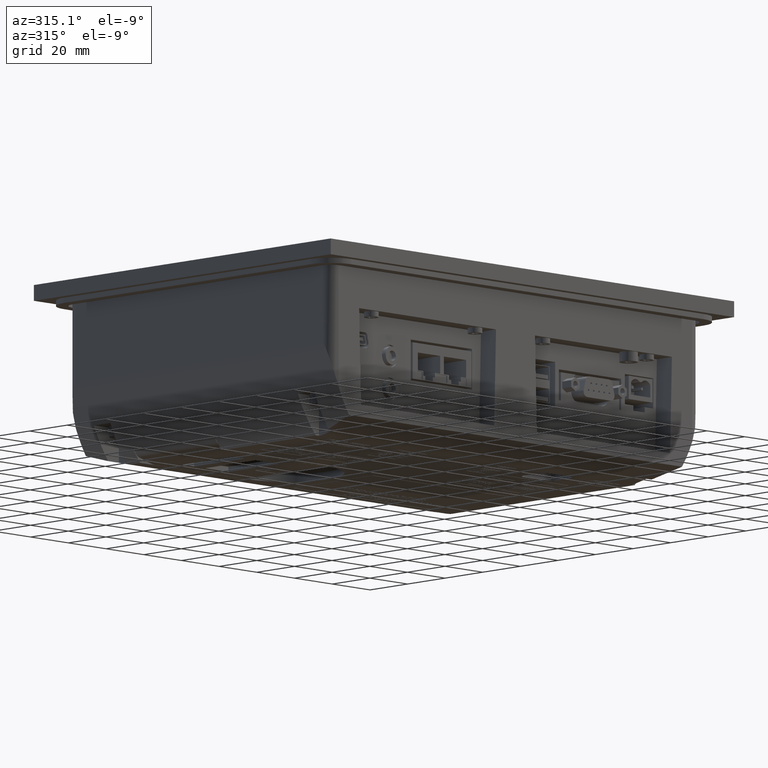
[diagram: clean part render]
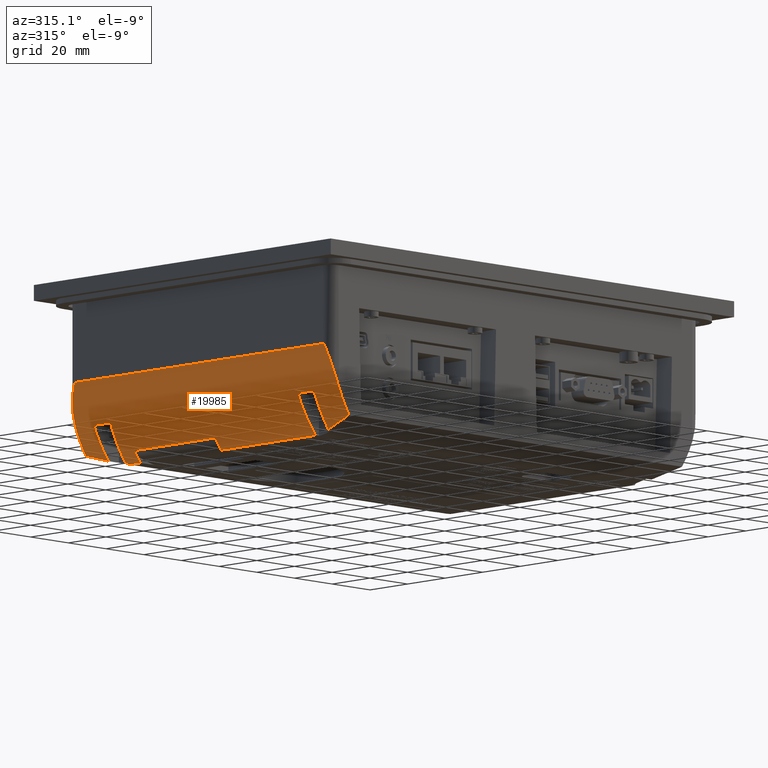
[diagram: same view with one face highlighted and labeled with its STEP entity id]
A machine part, auxiliary view. The second image highlights one B-rep face of the part: STEP entity #19985.
In plain terms, the highlighted cylindrical surface (partial cylindrical patch) has radius 60 mm, axis along (0, 1, 0).
Its self-contained STEP definition (entity closure, byte-faithful):
#91=ELLIPSE('',#50660,60.0571606108242,59.9999995013461);
#92=ELLIPSE('',#50661,60.0571606108119,59.9999995013461);
#93=ELLIPSE('',#50664,60.0571606107781,59.9999995013461);
#94=ELLIPSE('',#50665,60.0571606107981,59.9999995013461);
#432=B_SPLINE_CURVE_WITH_KNOTS('',3,(#66318,#66319,#66320,#66321),.UNSPECIFIED.,
 .F.,.F.,(4,4),(0.,1.),.UNSPECIFIED.);
#437=B_SPLINE_CURVE_WITH_KNOTS('',3,(#66396,#66397,#66398,#66399,#66400,
#66401,#66402,#66403,#66404,#66405,#66406,#66407,#66408,#66409),.UNSPECIFIED.,
 .F.,.F.,(4,2,2,2,2,2,4),(0.,0.0312499999999994,0.0624999999999988,0.124999999999999,
0.249999999999999,0.499999999999999,1.),.UNSPECIFIED.);
#438=B_SPLINE_CURVE_WITH_KNOTS('',3,(#66413,#66414,#66415,#66416,#66417,
#66418,#66419,#66420,#66421,#66422,#66423,#66424,#66425,#66426),.UNSPECIFIED.,
 .F.,.F.,(4,2,2,2,2,2,4),(0.,0.5,0.75,0.875000000000001,0.937500000000001,
0.96875,1.),.UNSPECIFIED.);
#439=B_SPLINE_CURVE_WITH_KNOTS('',3,(#66430,#66431,#66432,#66433),.UNSPECIFIED.,
 .F.,.F.,(4,4),(0.,1.),.UNSPECIFIED.);
#440=B_SPLINE_CURVE_WITH_KNOTS('',3,(#66441,#66442,#66443,#66444),.UNSPECIFIED.,
 .F.,.F.,(4,4),(0.,1.),.UNSPECIFIED.);
#1830=LINE('',#66284,#7215);
#1838=LINE('',#66300,#7223);
#1845=LINE('',#66385,#7230);
#1846=LINE('',#66391,#7231);
#1847=LINE('',#66411,#7232);
#1848=LINE('',#66437,#7233);
#7215=VECTOR('',#54502,1.);
#7223=VECTOR('',#54510,1.);
#7230=VECTOR('',#54545,1.);
#7231=VECTOR('',#54550,1.);
#7232=VECTOR('',#54555,1.);
#7233=VECTOR('',#54560,1.);
#17469=FACE_OUTER_BOUND('',#23519,.T.);
#19985=ADVANCED_FACE('',(#17469),#22531,.T.);
#22531=CYLINDRICAL_SURFACE('',#50667,59.9999995013461);
#23519=EDGE_LOOP('',(#27588,#27589,#27590,#27591,#27592,#27593,#27594,#27595,
#27596,#27597,#27598,#27599,#27600,#27601,#27602,#27603,#27604,#27605,#27606));
#27588=ORIENTED_EDGE('',*,*,#44105,.T.);
#27589=ORIENTED_EDGE('',*,*,#44106,.F.);
#27590=ORIENTED_EDGE('',*,*,#44081,.F.);
#27591=ORIENTED_EDGE('',*,*,#44107,.T.);
#27592=ORIENTED_EDGE('',*,*,#44108,.T.);
#27593=ORIENTED_EDGE('',*,*,#44109,.T.);
#27594=ORIENTED_EDGE('',*,*,#44088,.F.);
#27595=ORIENTED_EDGE('',*,*,#44110,.F.);
#27596=ORIENTED_EDGE('',*,*,#44111,.F.);
#27597=ORIENTED_EDGE('',*,*,#44112,.T.);
#27598=ORIENTED_EDGE('',*,*,#44113,.F.);
#27599=ORIENTED_EDGE('',*,*,#44114,.F.);
#27600=ORIENTED_EDGE('',*,*,#44115,.F.);
#27601=ORIENTED_EDGE('',*,*,#44116,.F.);
#27602=ORIENTED_EDGE('',*,*,#44117,.T.);
#27603=ORIENTED_EDGE('',*,*,#44118,.F.);
#27604=ORIENTED_EDGE('',*,*,#44119,.F.);
#27605=ORIENTED_EDGE('',*,*,#44073,.F.);
#27606=ORIENTED_EDGE('',*,*,#44120,.F.);
#39553=VERTEX_POINT('',#66283);
#39554=VERTEX_POINT('',#66285);
#39561=VERTEX_POINT('',#66299);
#39562=VERTEX_POINT('',#66301);
#39568=VERTEX_POINT('',#66317);
#39569=VERTEX_POINT('',#66322);
#39582=VERTEX_POINT('',#66386);
#39583=VERTEX_POINT('',#66387);
#39584=VERTEX_POINT('',#66390);
#39585=VERTEX_POINT('',#66392);
#39586=VERTEX_POINT('',#66395);
#39587=VERTEX_POINT('',#66410);
#39588=VERTEX_POINT('',#66412);
#39589=VERTEX_POINT('',#66427);
#39590=VERTEX_POINT('',#66429);
#39591=VERTEX_POINT('',#66434);
#39592=VERTEX_POINT('',#66436);
#39593=VERTEX_POINT('',#66438);
#39594=VERTEX_POINT('',#66440);
#44073=EDGE_CURVE('',#39553,#39554,#1830,.T.);
#44081=EDGE_CURVE('',#39561,#39562,#1838,.T.);
#44088=EDGE_CURVE('',#39568,#39569,#432,.T.);
#44105=EDGE_CURVE('',#39582,#39583,#1845,.T.);
#44106=EDGE_CURVE('',#39562,#39583,#49981,.T.);
#44107=EDGE_CURVE('',#39561,#39584,#91,.T.);
#44108=EDGE_CURVE('',#39584,#39585,#1846,.T.);
#44109=EDGE_CURVE('',#39585,#39569,#92,.T.);
#44110=EDGE_CURVE('',#39586,#39568,#49982,.T.);
#44111=EDGE_CURVE('',#39587,#39586,#437,.T.);
#44112=EDGE_CURVE('',#39587,#39588,#1847,.T.);
#44113=EDGE_CURVE('',#39589,#39588,#438,.T.);
#44114=EDGE_CURVE('',#39590,#39589,#49983,.T.);
#44115=EDGE_CURVE('',#39591,#39590,#439,.T.);
#44116=EDGE_CURVE('',#39592,#39591,#93,.T.);
#44117=EDGE_CURVE('',#39592,#39593,#1848,.T.);
#44118=EDGE_CURVE('',#39594,#39593,#94,.T.);
#44119=EDGE_CURVE('',#39554,#39594,#440,.T.);
#44120=EDGE_CURVE('',#39582,#39553,#49984,.T.);
#49981=CIRCLE('',#50659,59.9999995013461);
#49982=CIRCLE('',#50662,59.9999995013461);
#49983=CIRCLE('',#50663,59.9999995013461);
#49984=CIRCLE('',#50666,59.9999995013461);
#50659=AXIS2_PLACEMENT_3D('',#66388,#54546,#54547);
#50660=AXIS2_PLACEMENT_3D('',#66389,#54548,#54549);
#50661=AXIS2_PLACEMENT_3D('',#66393,#54551,#54552);
#50662=AXIS2_PLACEMENT_3D('',#66394,#54553,#54554);
#50663=AXIS2_PLACEMENT_3D('',#66428,#54556,#54557);
#50664=AXIS2_PLACEMENT_3D('',#66435,#54558,#54559);
#50665=AXIS2_PLACEMENT_3D('',#66439,#54561,#54562);
#50666=AXIS2_PLACEMENT_3D('',#66445,#54563,#54564);
#50667=AXIS2_PLACEMENT_3D('',#66446,#54565,#54566);
#54502=DIRECTION('',(0.,1.,0.));
#54510=DIRECTION('',(0.,1.,0.));
#54545=DIRECTION('',(0.,-1.,0.));
#54546=DIRECTION('',(0.,1.,0.));
#54547=DIRECTION('',(0.,0.,-1.));
#54548=DIRECTION('',(0.04361938742399,0.999048221579297,0.));
#54549=DIRECTION('',(-0.999048221579297,0.04361938742399,0.));
#54550=DIRECTION('',(0.,-1.,0.));
#54551=DIRECTION('',(0.0436193874192898,-0.999048221579502,0.));
#54552=DIRECTION('',(0.999048221579502,0.0436193874192898,0.));
#54553=DIRECTION('',(0.,-1.,0.));
#54554=DIRECTION('',(0.,0.,-1.));
#54555=DIRECTION('',(0.,1.,0.));
#54556=DIRECTION('',(0.,1.,0.));
#54557=DIRECTION('',(-1.,0.,-1.73472349039392E-016));
#54558=DIRECTION('',(-0.0436193874064379,-0.999048221580063,0.));
#54559=DIRECTION('',(-0.999048221580063,0.0436193874064379,0.));
#54560=DIRECTION('',(0.,-1.,0.));
#54561=DIRECTION('',(-0.0436193874140512,0.999048221579731,0.));
#54562=DIRECTION('',(0.999048221579731,0.0436193874140512,0.));
#54563=DIRECTION('',(0.,-1.,0.));
#54564=DIRECTION('',(0.,0.,1.));
#54565=DIRECTION('',(0.,1.,0.));
#54566=DIRECTION('',(0.,0.,1.));
#66283=CARTESIAN_POINT('',(-84.6864665830923,44.837825168691,-69.));
#66284=CARTESIAN_POINT('',(-84.6864665830328,-129.98540477914,-69.0000000000722));
#66285=CARTESIAN_POINT('',(-84.6864665830328,49.5000000250498,-69.0000000000722));
#66299=CARTESIAN_POINT('',(-84.6864665830923,-48.5844379357248,-69.));
#66300=CARTESIAN_POINT('',(-84.6864665830328,-129.98540477914,-69.0000000000722));
#66301=CARTESIAN_POINT('',(-84.6864665830923,1.53582516869095,-69.));
#66317=CARTESIAN_POINT('',(-88.3773316597062,-70.01459522086,-64.0180751684878));
#66318=CARTESIAN_POINT('',(-88.3773316597062,-70.01459522086,-64.0180751684877));
#66319=CARTESIAN_POINT('',(-87.434898906822,-65.5610932147296,-65.4380951870099));
#66320=CARTESIAN_POINT('',(-86.5446502500166,-61.0473752791859,-66.6488183990006));
#66321=CARTESIAN_POINT('',(-85.7664740659392,-56.4627162093689,-67.6504488785802));
#66322=CARTESIAN_POINT('',(-85.7664740659375,-56.4627162093692,-67.6504488785802));
#66385=CARTESIAN_POINT('',(-87.9062421722392,-129.98540477914,-64.7171840361978));
#66386=CARTESIAN_POINT('',(-87.9062421722392,44.8378251686909,-64.7171840361977));
#66387=CARTESIAN_POINT('',(-87.9062421722392,1.53582516869094,-64.7171840361977));
#66388=CARTESIAN_POINT('',(-38.3854101449694,1.53582516869094,-30.8396526106576));
#66389=CARTESIAN_POINT('',(-38.3854101449694,-50.605985720197,-30.8396526106576));
#66390=CARTESIAN_POINT('',(-93.735191074676,-48.1893620917707,-54.));
#66391=CARTESIAN_POINT('',(-93.735191074676,-129.98540477914,-54.));
#66392=CARTESIAN_POINT('',(-93.735191074676,-56.810637908173,-54.));
#66393=CARTESIAN_POINT('',(-38.3854101449694,-54.3940142800076,-30.8396526106576));
#66394=CARTESIAN_POINT('',(-38.3854101449694,-70.01459522086,-30.8396526106576));
#66395=CARTESIAN_POINT('',(-93.75,-70.01459522086,-53.9645770504428));
#66396=CARTESIAN_POINT('',(-98.01459522086,-65.75,-37.4999999999997));
#66397=CARTESIAN_POINT('',(-98.01459522086,-65.9429382093576,-37.4999999999997));
#66398=CARTESIAN_POINT('',(-98.0013331219223,-66.1116304051091,-37.6190124532611));
#66399=CARTESIAN_POINT('',(-97.970373320777,-66.3769440937811,-37.8859392644307));
#66400=CARTESIAN_POINT('',(-97.951927137422,-66.485369799945,-38.0407569962235));
#66401=CARTESIAN_POINT('',(-97.8926838733325,-66.7823249371112,-38.5200143774556));
#66402=CARTESIAN_POINT('',(-97.8483168188718,-66.939179394634,-38.8572394451325));
#66403=CARTESIAN_POINT('',(-97.7041179679696,-67.3766614349377,-39.8821609327579));
#66404=CARTESIAN_POINT('',(-97.5925359240226,-67.6171722983184,-40.5878444833252));
#66405=CARTESIAN_POINT('',(-97.2189368353798,-68.2821569688398,-42.6996807681286));
#66406=CARTESIAN_POINT('',(-96.9167691215585,-68.6453908221899,-44.1138406360916));
#66407=CARTESIAN_POINT('',(-95.8464826383805,-69.5829234382563,-48.3531197986822));
#66408=CARTESIAN_POINT('',(-94.9079391647971,-70.01459522086,-51.1922943948606));
#66409=CARTESIAN_POINT('',(-93.75,-70.01459522086,-53.9645770504428));
#66410=CARTESIAN_POINT('',(-98.01459522086,-65.75,-37.5));
#66411=CARTESIAN_POINT('',(-98.01459522086,-129.98540477914,-37.5));
#66412=CARTESIAN_POINT('',(-98.01459522086,65.75,-37.4999999999997));
#66413=CARTESIAN_POINT('',(-93.75,70.01459522086,-53.9645770504428));
#66414=CARTESIAN_POINT('',(-94.9095124848158,70.01459522086,-51.1885276271995));
#66415=CARTESIAN_POINT('',(-95.8383225982751,69.5888776951757,-48.3829788750863));
#66416=CARTESIAN_POINT('',(-96.9163309035076,68.6463677625736,-44.1167995830205));
#66417=CARTESIAN_POINT('',(-97.2204800647035,68.280318319099,-42.6923910809029));
#66418=CARTESIAN_POINT('',(-97.5945058825653,67.6132067749252,-40.5759841828341));
#66419=CARTESIAN_POINT('',(-97.7055871278565,67.3732555773946,-39.8725637289903));
#66420=CARTESIAN_POINT('',(-97.8497347974553,66.9343398742643,-38.8467287863345));
#66421=CARTESIAN_POINT('',(-97.8942719489312,66.7757390444304,-38.507560257828));
#66422=CARTESIAN_POINT('',(-97.9528268615691,66.4801426665396,-38.0332734690465));
#66423=CARTESIAN_POINT('',(-97.9710924369156,66.372067467452,-37.8798310308642));
#66424=CARTESIAN_POINT('',(-98.001732803639,66.1068717718013,-37.615471309715));
#66425=CARTESIAN_POINT('',(-98.0145952208601,65.9399999442577,-37.4999999999998));
#66426=CARTESIAN_POINT('',(-98.01459522086,65.75,-37.4999999999997));
#66427=CARTESIAN_POINT('',(-93.75,70.01459522086,-53.9645770504428));
#66428=CARTESIAN_POINT('',(-38.3854101449694,70.01459522086,-30.8396526106576));
#66429=CARTESIAN_POINT('',(-88.3773316654411,70.01459522086,-64.0180751598466));
#66430=CARTESIAN_POINT('',(-86.4049088601822,60.0779127603746,-66.8136388132069));
#66431=CARTESIAN_POINT('',(-87.018197041221,63.4255835382713,-65.994997507914));
#66432=CARTESIAN_POINT('',(-87.6836186028934,66.7364276589531,-65.0633342865937));
#66433=CARTESIAN_POINT('',(-88.3773316654411,70.014595220859,-64.0180751598466));
#66434=CARTESIAN_POINT('',(-86.4049088601776,60.0779127603754,-66.8136388132067));
#66435=CARTESIAN_POINT('',(-38.3854101449694,57.981336166496,-30.8396526106576));
#66436=CARTESIAN_POINT('',(-93.735191074676,60.397959793948,-54.));
#66437=CARTESIAN_POINT('',(-93.735191074676,-129.98540477914,-54.));
#66438=CARTESIAN_POINT('',(-93.735191074676,51.602040205958,-54.));
#66439=CARTESIAN_POINT('',(-38.3854101449694,54.0186638338326,-30.8396526106576));
#66440=CARTESIAN_POINT('',(-85.0470959344576,51.9813706322832,-68.5581761693029));
#66441=CARTESIAN_POINT('',(-84.6864665830328,49.5000000250498,-69.0000000000722));
#66442=CARTESIAN_POINT('',(-84.8022861209518,50.3295520206521,-68.8594727950367));
#66443=CARTESIAN_POINT('',(-84.9226068103095,51.1566516714687,-68.7121819958151));
#66444=CARTESIAN_POINT('',(-85.0470959344631,51.9813706322823,-68.5581761693031));
#66445=CARTESIAN_POINT('',(-38.3854101449694,44.8378251686909,-30.8396526106576));
#66446=CARTESIAN_POINT('',(-38.3854101449694,-129.98540477914,-30.8396526106576));